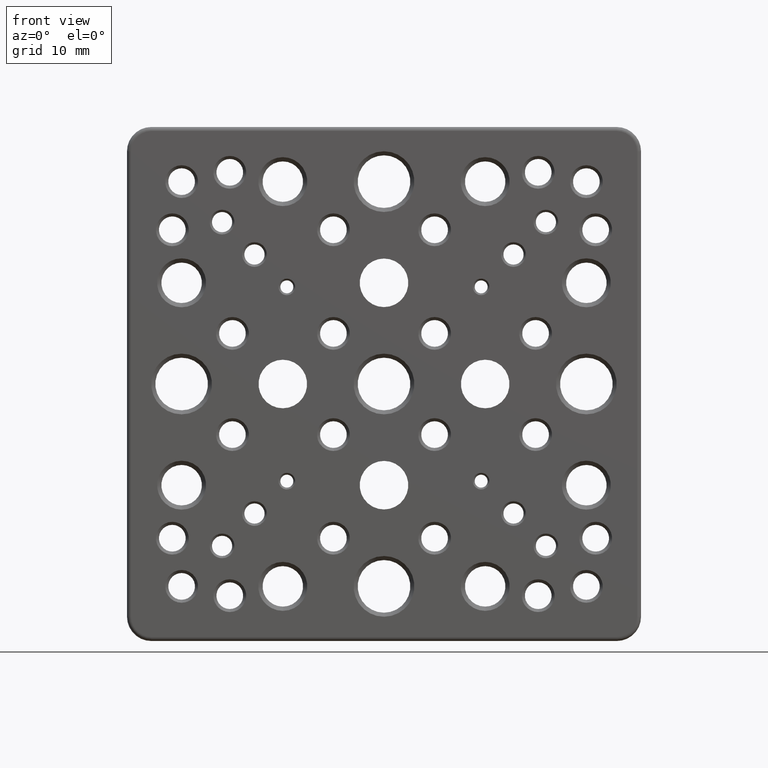
[diagram: clean part render]
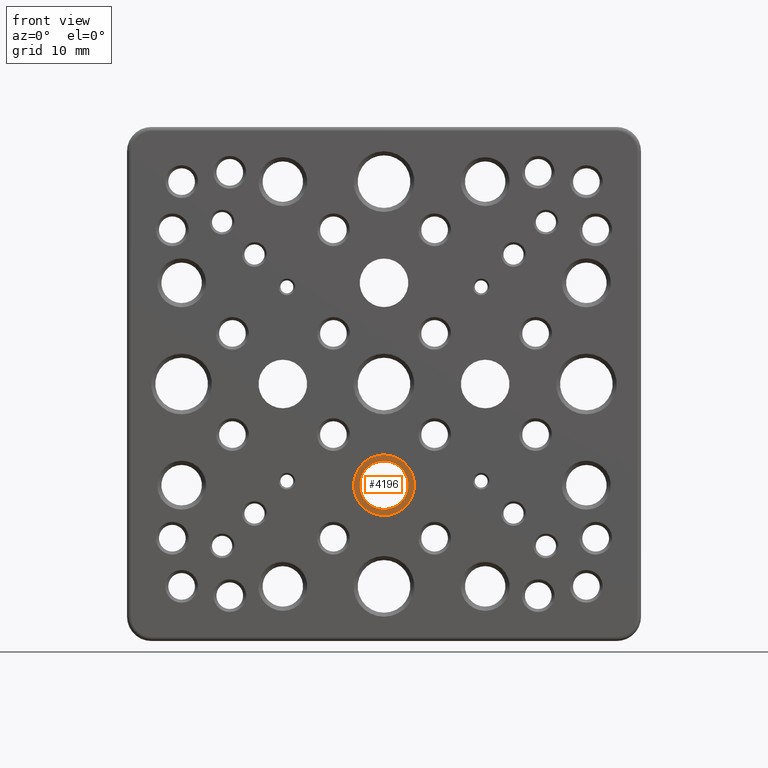
[diagram: same view with one face highlighted and labeled with its STEP entity id]
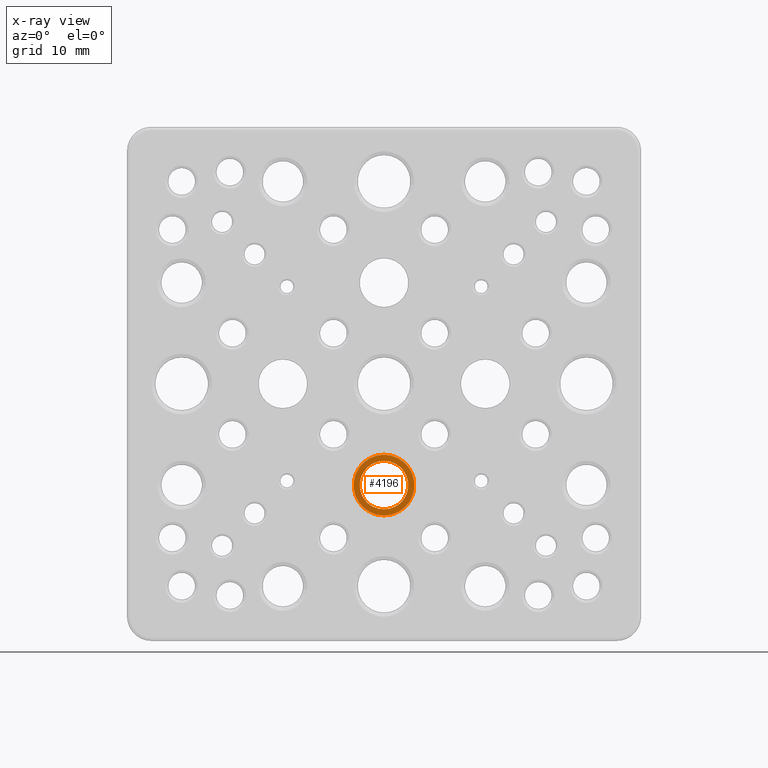
[diagram: x-ray of the same camera — body ghosted, the highlighted face saturated]
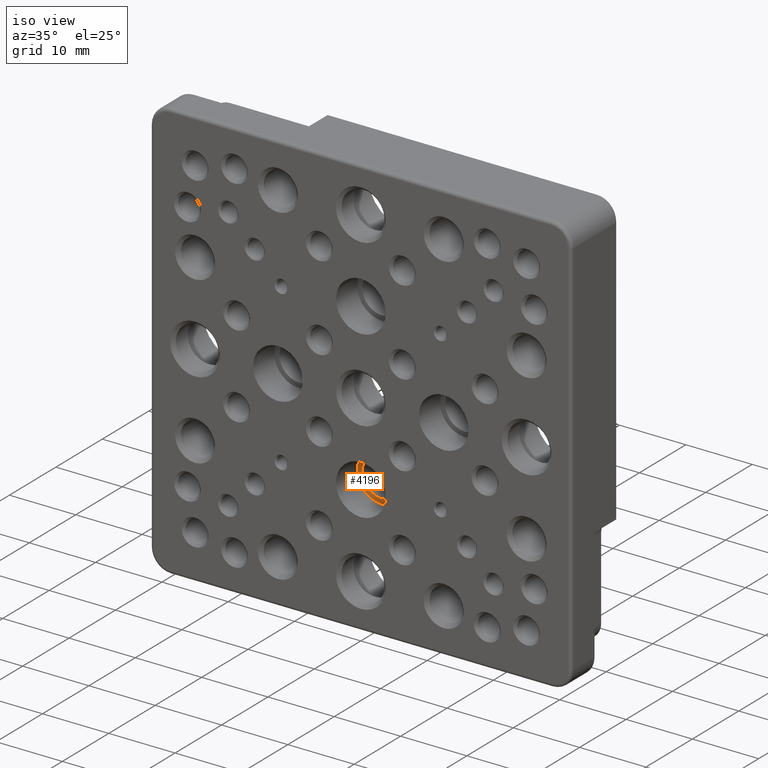
[diagram: same view with one face highlighted and labeled with its STEP entity id]
A machine part, front view. The second image highlights one B-rep face of the part: STEP entity #4196.
The next image is the same camera in x-ray: the body ghosted, the highlighted face saturated — about 0% of this face is hidden behind the body in this view.
A second angle (iso view) of the same face is appended — the face is thin or edge-on in the first view.
In plain terms, the highlighted planar face has unit normal (0, 1, 0).
Its self-contained STEP definition (entity closure, byte-faithful):
#251 = PLANE ( 'NONE',  #4279 ) ;
#946 = CARTESIAN_POINT ( 'NONE',  ( 3.469446951953614189E-15, 4.599999999999999645, -16.25000000000001421 ) ) ;
#1098 = EDGE_LOOP ( 'NONE', ( #4042 ) ) ;
#1204 = DIRECTION ( 'NONE',  ( -0.000000000000000000, -1.000000000000000000, -0.000000000000000000 ) ) ;
#1288 = CARTESIAN_POINT ( 'NONE',  ( 3.000000000000016431, 4.599999999999999645, -12.50000000000000000 ) ) ;
#1547 = AXIS2_PLACEMENT_3D ( 'NONE', #3552, #1204, #2170 ) ;
#1626 = CARTESIAN_POINT ( 'NONE',  ( 3.469446951953614189E-15, 4.599999999999999645, -12.50000000000000000 ) ) ;
#1749 = EDGE_LOOP ( 'NONE', ( #2324 ) ) ;
#1764 = CIRCLE ( 'NONE', #1547, 3.750000000000013767 ) ;
#1992 = DIRECTION ( 'NONE',  ( -0.000000000000000000, -1.000000000000000000, -0.000000000000000000 ) ) ;
#2007 = EDGE_CURVE ( 'NONE', #2319, #2319, #2525, .T. ) ;
#2170 = DIRECTION ( 'NONE',  ( 0.000000000000000000, 0.000000000000000000, -1.000000000000000000 ) ) ;
#2249 = FACE_BOUND ( 'NONE', #1098, .T. ) ;
#2319 = VERTEX_POINT ( 'NONE', #4350 ) ;
#2324 = ORIENTED_EDGE ( 'NONE', *, *, #3653, .T. ) ;
#2525 = CIRCLE ( 'NONE', #3731, 3.000000000000012879 ) ;
#2628 = DIRECTION ( 'NONE',  ( 0.000000000000000000, -0.000000000000000000, 1.000000000000000000 ) ) ;
#2674 = FACE_OUTER_BOUND ( 'NONE', #1749, .T. ) ;
#3358 = DIRECTION ( 'NONE',  ( 0.000000000000000000, 0.000000000000000000, -1.000000000000000000 ) ) ;
#3552 = CARTESIAN_POINT ( 'NONE',  ( 3.469446951953614189E-15, 4.599999999999999645, -12.50000000000000000 ) ) ;
#3653 = EDGE_CURVE ( 'NONE', #4002, #4002, #1764, .T. ) ;
#3731 = AXIS2_PLACEMENT_3D ( 'NONE', #1626, #1992, #3358 ) ;
#4002 = VERTEX_POINT ( 'NONE', #946 ) ;
#4042 = ORIENTED_EDGE ( 'NONE', *, *, #2007, .F. ) ;
#4196 = ADVANCED_FACE ( 'NONE', ( #2249, #2674 ), #251, .F. ) ;
#4279 = AXIS2_PLACEMENT_3D ( 'NONE', #1288, #4324, #2628 ) ;
#4324 = DIRECTION ( 'NONE',  ( 0.000000000000000000, 1.000000000000000000, 0.000000000000000000 ) ) ;
#4350 = CARTESIAN_POINT ( 'NONE',  ( 3.469446951953614189E-15, 4.599999999999999645, -15.50000000000001421 ) ) ;